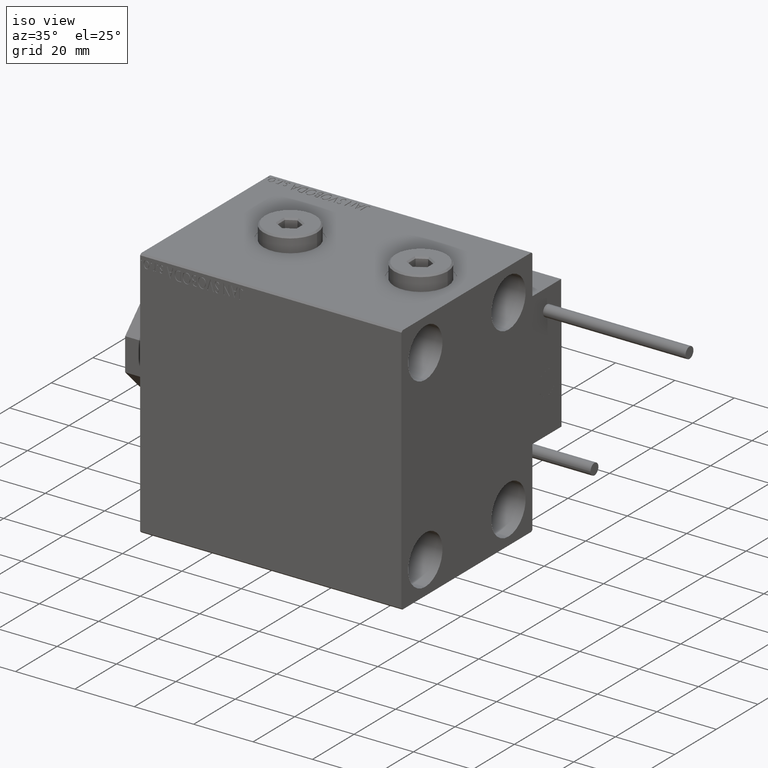
[diagram: clean part render]
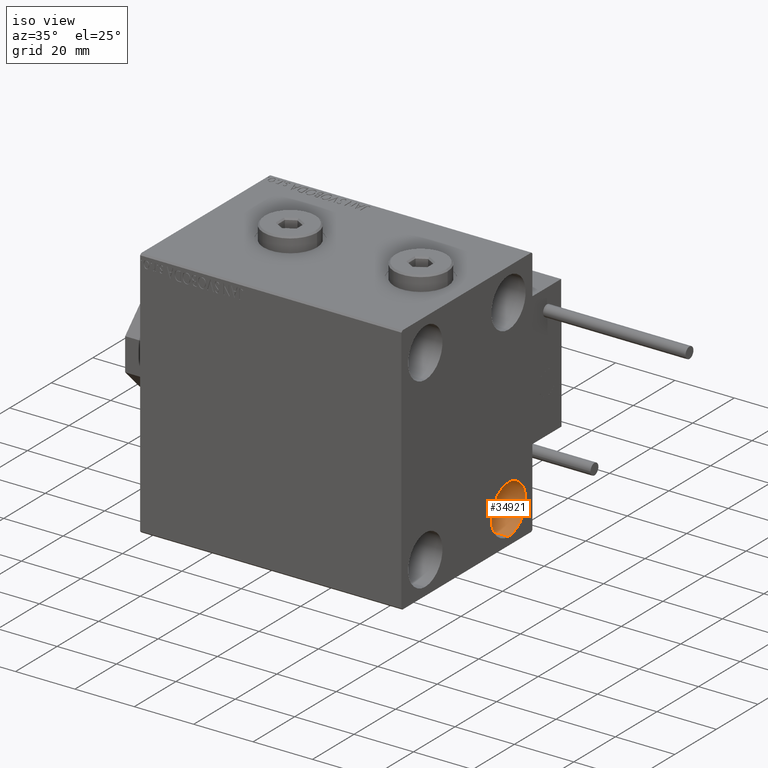
[diagram: same view with one face highlighted and labeled with its STEP entity id]
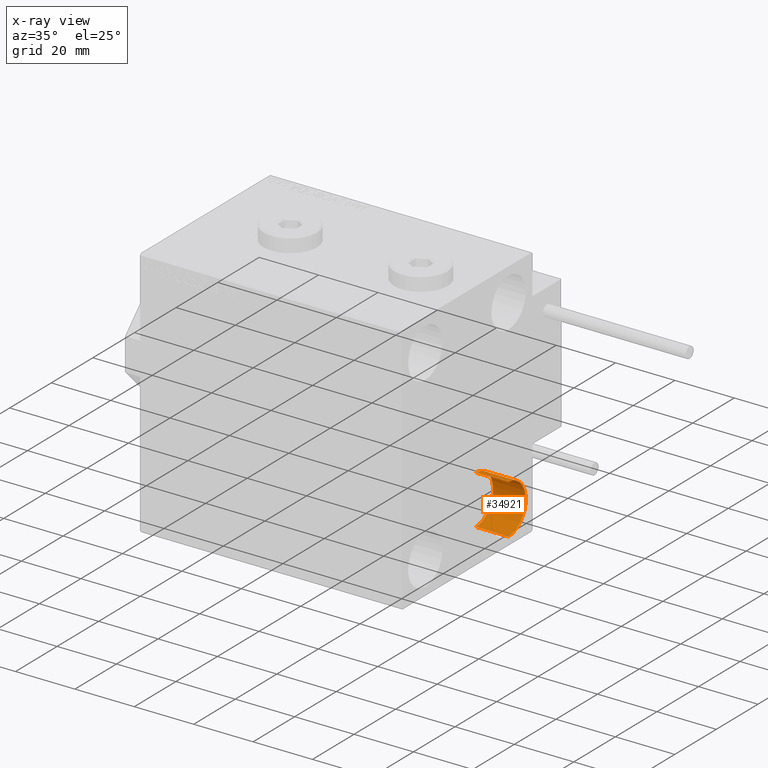
[diagram: x-ray of the same camera — body ghosted, the highlighted face saturated]
A machine part, iso view. The second image highlights one B-rep face of the part: STEP entity #34921.
The next image is the same camera in x-ray: the body ghosted, the highlighted face saturated — about 1% of this face is hidden behind the body in this view.
In plain terms, the highlighted cylindrical surface (edge-blend (fillet) strip) has radius 8.25 mm, axis along (1, 0, 0).
Its self-contained STEP definition (entity closure, byte-faithful):
#4879 = CARTESIAN_POINT ( 'NONE',  ( 77.00000000000000000, 19.99999999999999645, -23.24999999999999289 ) ) ;
#6101 = DIRECTION ( 'NONE',  ( -1.000000000000000000, -0.000000000000000000, -0.000000000000000000 ) ) ;
#6884 = CARTESIAN_POINT ( 'NONE',  ( 77.00000000000000000, 19.99999999999999645, -31.49999999999999289 ) ) ;
#7727 = CARTESIAN_POINT ( 'NONE',  ( 77.00000000000000000, 19.99999999999999645, -39.74999999999999289 ) ) ;
#8984 = DIRECTION ( 'NONE',  ( 1.000000000000000000, -0.000000000000000000, -0.000000000000000000 ) ) ;
#9574 = DIRECTION ( 'NONE',  ( -1.000000000000000000, -0.000000000000000000, -0.000000000000000000 ) ) ;
#9654 = CIRCLE ( 'NONE', #46290, 8.250000000000000000 ) ;
#13401 = FACE_OUTER_BOUND ( 'NONE', #35491, .T. ) ;
#13736 = ORIENTED_EDGE ( 'NONE', *, *, #28785, .T. ) ;
#15690 = ORIENTED_EDGE ( 'NONE', *, *, #34607, .F. ) ;
#16080 = LINE ( 'NONE', #4879, #45924 ) ;
#16543 = VECTOR ( 'NONE', #29422, 1000.000000000000000 ) ;
#16852 = DIRECTION ( 'NONE',  ( 1.000000000000000000, -0.000000000000000000, -0.000000000000000000 ) ) ;
#17556 = CYLINDRICAL_SURFACE ( 'NONE', #20906, 8.250000000000000000 ) ;
#18139 = CARTESIAN_POINT ( 'NONE',  ( 88.00000000000000000, 19.99999999999999645, -31.49999999999999289 ) ) ;
#19240 = ORIENTED_EDGE ( 'NONE', *, *, #37805, .T. ) ;
#19322 = CARTESIAN_POINT ( 'NONE',  ( 88.00000000000000000, 19.99999999999999645, -39.74999999999999289 ) ) ;
#20906 = AXIS2_PLACEMENT_3D ( 'NONE', #21705, #8984, #29271 ) ;
#21705 = CARTESIAN_POINT ( 'NONE',  ( 77.00000000000000000, 19.99999999999999645, -31.49999999999999289 ) ) ;
#21959 = DIRECTION ( 'NONE',  ( 0.000000000000000000, 0.000000000000000000, 1.000000000000000000 ) ) ;
#25423 = DIRECTION ( 'NONE',  ( 0.000000000000000000, 0.000000000000000000, 1.000000000000000000 ) ) ;
#27032 = VERTEX_POINT ( 'NONE', #19322 ) ;
#27679 = CIRCLE ( 'NONE', #35195, 8.250000000000000000 ) ;
#28785 = EDGE_CURVE ( 'NONE', #34110, #27032, #36466, .T. ) ;
#29271 = DIRECTION ( 'NONE',  ( 0.000000000000000000, 0.000000000000000000, -1.000000000000000000 ) ) ;
#29422 = DIRECTION ( 'NONE',  ( 1.000000000000000000, -0.000000000000000000, -0.000000000000000000 ) ) ;
#34110 = VERTEX_POINT ( 'NONE', #7727 ) ;
#34607 = EDGE_CURVE ( 'NONE', #39639, #45232, #16080, .T. ) ;
#34921 = ADVANCED_FACE ( 'NONE', ( #13401 ), #17556, .F. ) ;
#35195 = AXIS2_PLACEMENT_3D ( 'NONE', #6884, #6101, #21959 ) ;
#35491 = EDGE_LOOP ( 'NONE', ( #15690, #19240, #13736, #38868 ) ) ;
#36466 = LINE ( 'NONE', #40921, #16543 ) ;
#37805 = EDGE_CURVE ( 'NONE', #39639, #34110, #27679, .T. ) ;
#38868 = ORIENTED_EDGE ( 'NONE', *, *, #48831, .F. ) ;
#39639 = VERTEX_POINT ( 'NONE', #47776 ) ;
#40921 = CARTESIAN_POINT ( 'NONE',  ( 77.00000000000000000, 19.99999999999999645, -39.74999999999999289 ) ) ;
#45232 = VERTEX_POINT ( 'NONE', #50574 ) ;
#45924 = VECTOR ( 'NONE', #16852, 1000.000000000000000 ) ;
#46290 = AXIS2_PLACEMENT_3D ( 'NONE', #18139, #9574, #25423 ) ;
#47776 = CARTESIAN_POINT ( 'NONE',  ( 77.00000000000000000, 19.99999999999999645, -23.24999999999999289 ) ) ;
#48831 = EDGE_CURVE ( 'NONE', #45232, #27032, #9654, .T. ) ;
#50574 = CARTESIAN_POINT ( 'NONE',  ( 88.00000000000000000, 19.99999999999999645, -23.24999999999999289 ) ) ;